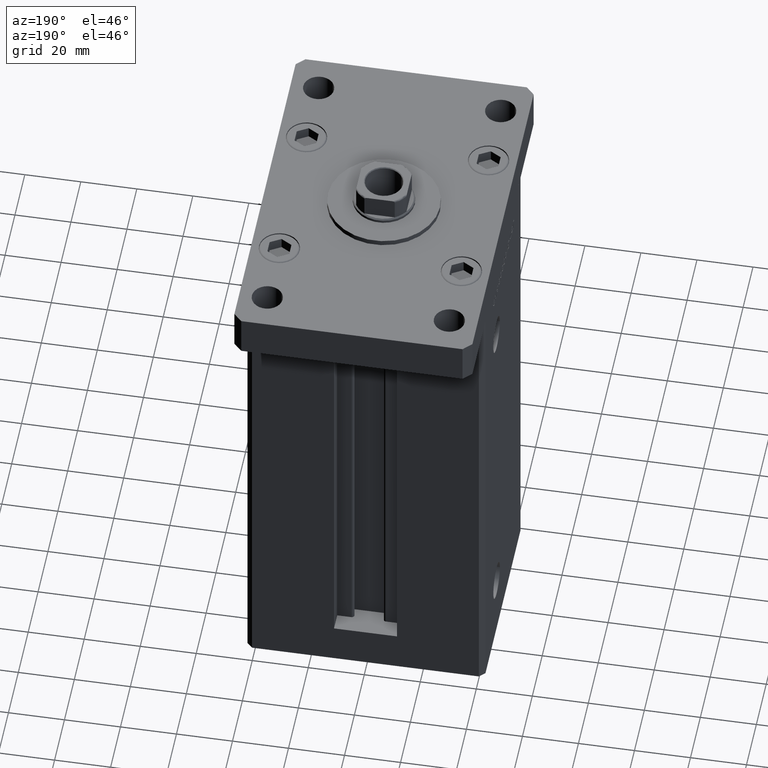
[diagram: clean part render]
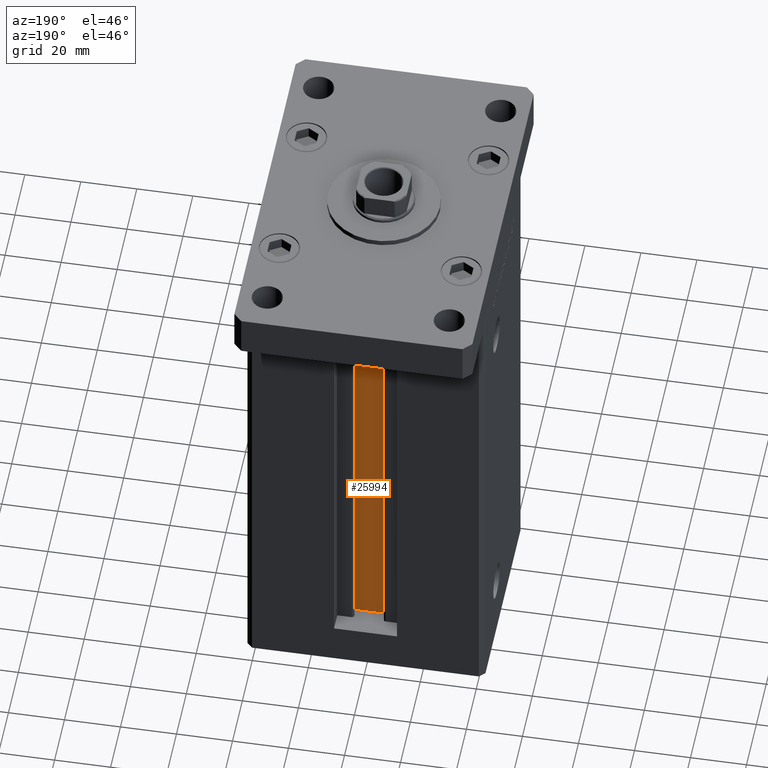
[diagram: same view with one face highlighted and labeled with its STEP entity id]
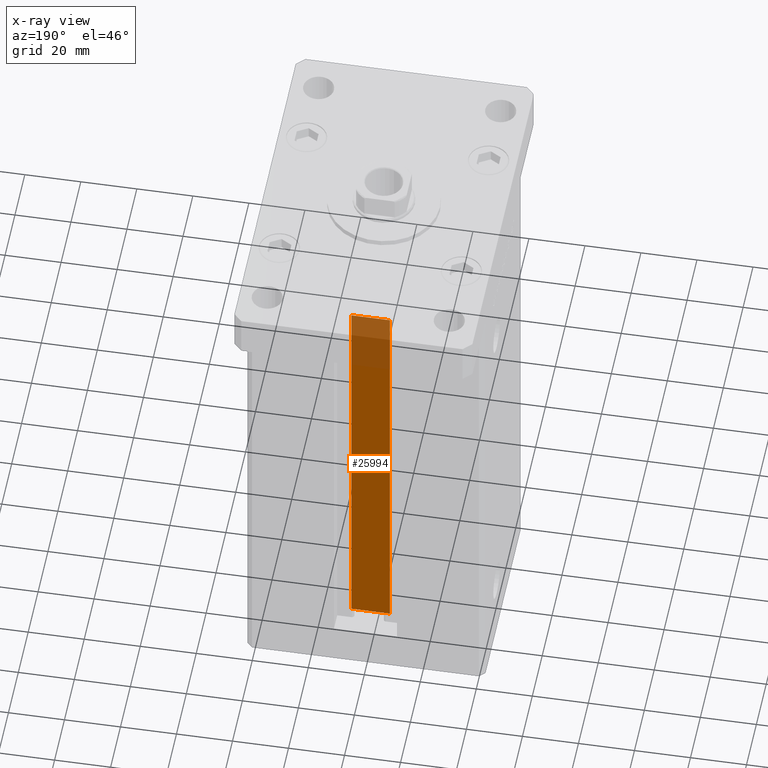
[diagram: x-ray of the same camera — body ghosted, the highlighted face saturated]
A machine part, auxiliary view. The second image highlights one B-rep face of the part: STEP entity #25994.
The next image is the same camera in x-ray: the body ghosted, the highlighted face saturated — about 17% of this face is hidden behind the body in this view.
In plain terms, the highlighted planar face has unit normal (0, -1, 0).
Its self-contained STEP definition (entity closure, byte-faithful):
#118 = VERTEX_POINT ( 'NONE', #48413 ) ;
#580 = DIRECTION ( 'NONE',  ( 0.000000000000000000, 0.000000000000000000, -1.000000000000000000 ) ) ;
#1433 = DIRECTION ( 'NONE',  ( -0.000000000000000000, -0.000000000000000000, 1.000000000000000000 ) ) ;
#3009 = LINE ( 'NONE', #26847, #30223 ) ;
#4335 = LINE ( 'NONE', #24660, #21381 ) ;
#7541 = ORIENTED_EDGE ( 'NONE', *, *, #52306, .F. ) ;
#8121 = CARTESIAN_POINT ( 'NONE',  ( -6.876153656360465938, 26.99999999999986855, 148.5000000000000000 ) ) ;
#8410 = DIRECTION ( 'NONE',  ( -1.000000000000000000, 0.000000000000000000, 0.000000000000000000 ) ) ;
#8452 = FACE_OUTER_BOUND ( 'NONE', #18089, .T. ) ;
#8632 = CARTESIAN_POINT ( 'NONE',  ( -6.876153656360465938, 26.99999999999986855, 0.000000000000000000 ) ) ;
#8908 = VECTOR ( 'NONE', #1433, 1000.000000000000000 ) ;
#9369 = EDGE_CURVE ( 'NONE', #40399, #43198, #18482, .T. ) ;
#10530 = ORIENTED_EDGE ( 'NONE', *, *, #44626, .T. ) ;
#12426 = LINE ( 'NONE', #8632, #12712 ) ;
#12712 = VECTOR ( 'NONE', #41170, 1000.000000000000000 ) ;
#12773 = CARTESIAN_POINT ( 'NONE',  ( 6.876153656360465938, 26.99999999999986855, 0.000000000000000000 ) ) ;
#14156 = CARTESIAN_POINT ( 'NONE',  ( 6.876153656360465938, 26.99999999999986855, 0.000000000000000000 ) ) ;
#14852 = ORIENTED_EDGE ( 'NONE', *, *, #9369, .F. ) ;
#15527 = ORIENTED_EDGE ( 'NONE', *, *, #46627, .F. ) ;
#17414 = CARTESIAN_POINT ( 'NONE',  ( 6.876153656360465938, 26.99999999999986855, 0.000000000000000000 ) ) ;
#18089 = EDGE_LOOP ( 'NONE', ( #14852, #7541, #10530, #15527 ) ) ;
#18482 = LINE ( 'NONE', #14156, #8908 ) ;
#19345 = CARTESIAN_POINT ( 'NONE',  ( 6.876153656360465938, 26.99999999999986855, 148.5000000000000000 ) ) ;
#19532 = DIRECTION ( 'NONE',  ( 1.000000000000000000, -0.000000000000000000, -0.000000000000000000 ) ) ;
#21381 = VECTOR ( 'NONE', #8410, 1000.000000000000000 ) ;
#24660 = CARTESIAN_POINT ( 'NONE',  ( 0.000000000000000000, 26.99999999999986855, 148.5000000000000000 ) ) ;
#25726 = AXIS2_PLACEMENT_3D ( 'NONE', #12773, #33373, #580 ) ;
#25994 = ADVANCED_FACE ( 'NONE', ( #8452 ), #41254, .F. ) ;
#26382 = VERTEX_POINT ( 'NONE', #8121 ) ;
#26847 = CARTESIAN_POINT ( 'NONE',  ( 6.876153656360465938, 26.99999999999986855, 0.000000000000000000 ) ) ;
#30223 = VECTOR ( 'NONE', #19532, 1000.000000000000000 ) ;
#33373 = DIRECTION ( 'NONE',  ( 0.000000000000000000, -1.000000000000000000, -0.000000000000000000 ) ) ;
#40399 = VERTEX_POINT ( 'NONE', #17414 ) ;
#41170 = DIRECTION ( 'NONE',  ( -0.000000000000000000, -0.000000000000000000, 1.000000000000000000 ) ) ;
#41254 = PLANE ( 'NONE',  #25726 ) ;
#43198 = VERTEX_POINT ( 'NONE', #19345 ) ;
#44626 = EDGE_CURVE ( 'NONE', #118, #26382, #12426, .T. ) ;
#46627 = EDGE_CURVE ( 'NONE', #43198, #26382, #4335, .T. ) ;
#48413 = CARTESIAN_POINT ( 'NONE',  ( -6.876153656360465938, 26.99999999999986855, 0.000000000000000000 ) ) ;
#52306 = EDGE_CURVE ( 'NONE', #118, #40399, #3009, .T. ) ;